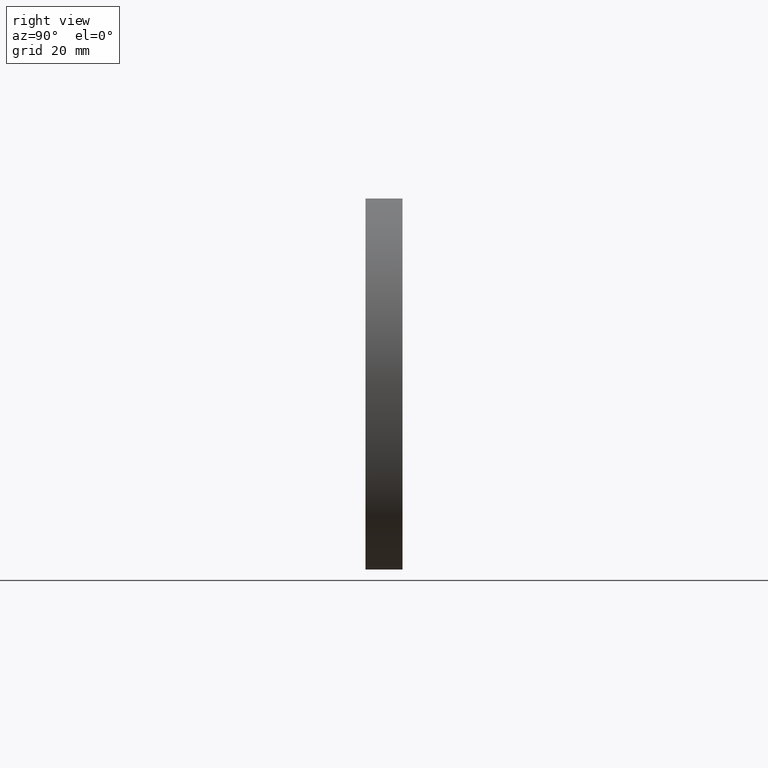
[diagram: clean part render]
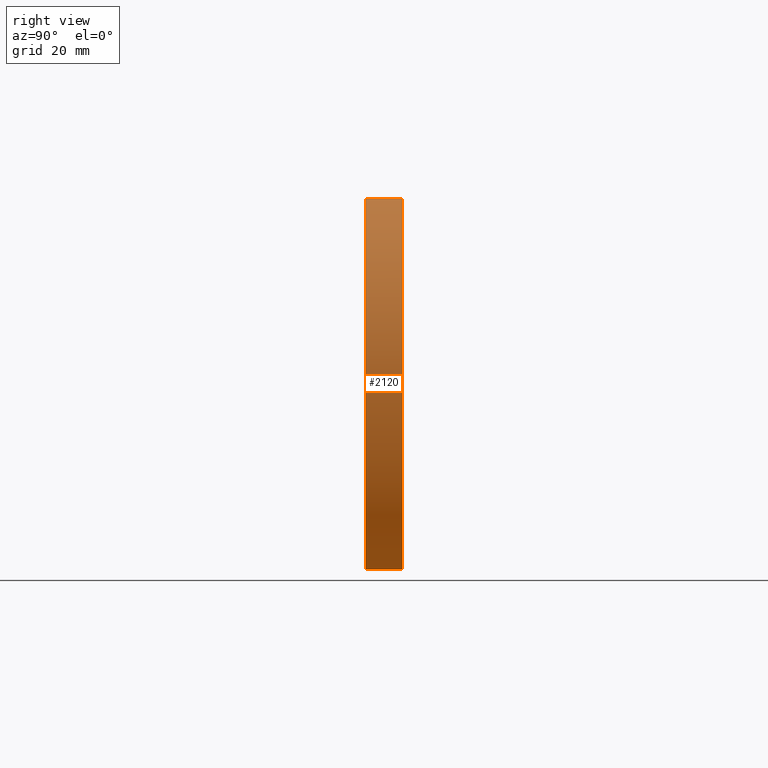
[diagram: same view with one face highlighted and labeled with its STEP entity id]
A machine part, right view. The second image highlights one B-rep face of the part: STEP entity #2120.
In plain terms, the highlighted cylindrical surface (partial cylindrical patch) has radius 68.8895 mm, axis along (-0, -1, -0).
Its self-contained STEP definition (entity closure, byte-faithful):
#478 = DIRECTION ( 'NONE',  ( -0.0000000000000000000, -1.000000000000000000, -0.0000000000000000000 ) ) ;
#593 = DIRECTION ( 'NONE',  ( -0.0000000000000000000, -1.000000000000000000, -0.0000000000000000000 ) ) ;
#1012 = CARTESIAN_POINT ( 'NONE',  ( 16.11046511627908000, 0.0000000000000000000, -3.469446951953614200E-015 ) ) ;
#1491 = ORIENTED_EDGE ( 'NONE', *, *, #5315, .F. ) ;
#1541 = EDGE_CURVE ( 'NONE', #5618, #4746, #1969, .T. ) ;
#1732 = CARTESIAN_POINT ( 'NONE',  ( 63.50000000000002800, 10.00000000000000000, -49.99999999999997200 ) ) ;
#1969 = CIRCLE ( 'NONE', #8441, 68.88953488372092700 ) ;
#2120 = ADVANCED_FACE ( 'NONE', ( #3380 ), #6106, .T. ) ;
#2134 = CARTESIAN_POINT ( 'NONE',  ( 63.49999999999998600, 0.0000000000000000000, 50.00000000000001400 ) ) ;
#2392 = ORIENTED_EDGE ( 'NONE', *, *, #9904, .T. ) ;
#2763 = DIRECTION ( 'NONE',  ( 0.0000000000000000000, 1.000000000000000000, -0.0000000000000000000 ) ) ;
#3380 = FACE_OUTER_BOUND ( 'NONE', #10609, .T. ) ;
#4746 = VERTEX_POINT ( 'NONE', #9344 ) ;
#5177 = ORIENTED_EDGE ( 'NONE', *, *, #7869, .F. ) ;
#5306 = LINE ( 'NONE', #5945, #10251 ) ;
#5315 = EDGE_CURVE ( 'NONE', #10737, #9726, #10324, .T. ) ;
#5618 = VERTEX_POINT ( 'NONE', #2134 ) ;
#5631 = CARTESIAN_POINT ( 'NONE',  ( 63.50000000000002800, 10.00000000000000000, -49.99999999999997200 ) ) ;
#5633 = CARTESIAN_POINT ( 'NONE',  ( 16.11046511627908000, 10.00000000000000000, -3.469446951953614200E-015 ) ) ;
#5945 = CARTESIAN_POINT ( 'NONE',  ( 63.49999999999998600, 10.00000000000000000, 50.00000000000001400 ) ) ;
#5947 = CARTESIAN_POINT ( 'NONE',  ( 16.11046511627908000, 10.00000000000000000, -3.469446951953614200E-015 ) ) ;
#6106 = CYLINDRICAL_SURFACE ( 'NONE', #8999, 68.88953488372092700 ) ;
#6364 = ORIENTED_EDGE ( 'NONE', *, *, #1541, .T. ) ;
#6428 = AXIS2_PLACEMENT_3D ( 'NONE', #5947, #9284, #7658 ) ;
#7658 = DIRECTION ( 'NONE',  ( 0.0000000000000000000, 0.0000000000000000000, -1.000000000000000000 ) ) ;
#7869 = EDGE_CURVE ( 'NONE', #9726, #4746, #10273, .T. ) ;
#8050 = CARTESIAN_POINT ( 'NONE',  ( 63.49999999999998600, 10.00000000000000000, 50.00000000000001400 ) ) ;
#8441 = AXIS2_PLACEMENT_3D ( 'NONE', #1012, #2763, #8539 ) ;
#8469 = DIRECTION ( 'NONE',  ( -0.0000000000000000000, -1.000000000000000000, -0.0000000000000000000 ) ) ;
#8539 = DIRECTION ( 'NONE',  ( 0.0000000000000000000, 0.0000000000000000000, -1.000000000000000000 ) ) ;
#8999 = AXIS2_PLACEMENT_3D ( 'NONE', #5633, #593, #10530 ) ;
#9284 = DIRECTION ( 'NONE',  ( 0.0000000000000000000, 1.000000000000000000, -0.0000000000000000000 ) ) ;
#9344 = CARTESIAN_POINT ( 'NONE',  ( 63.50000000000002800, 0.0000000000000000000, -49.99999999999997200 ) ) ;
#9726 = VERTEX_POINT ( 'NONE', #1732 ) ;
#9904 = EDGE_CURVE ( 'NONE', #10737, #5618, #5306, .T. ) ;
#10251 = VECTOR ( 'NONE', #8469, 1000.000000000000000 ) ;
#10273 = LINE ( 'NONE', #5631, #10546 ) ;
#10324 = CIRCLE ( 'NONE', #6428, 68.88953488372092700 ) ;
#10530 = DIRECTION ( 'NONE',  ( 0.0000000000000000000, 0.0000000000000000000, -1.000000000000000000 ) ) ;
#10546 = VECTOR ( 'NONE', #478, 1000.000000000000000 ) ;
#10609 = EDGE_LOOP ( 'NONE', ( #6364, #5177, #1491, #2392 ) ) ;
#10737 = VERTEX_POINT ( 'NONE', #8050 ) ;